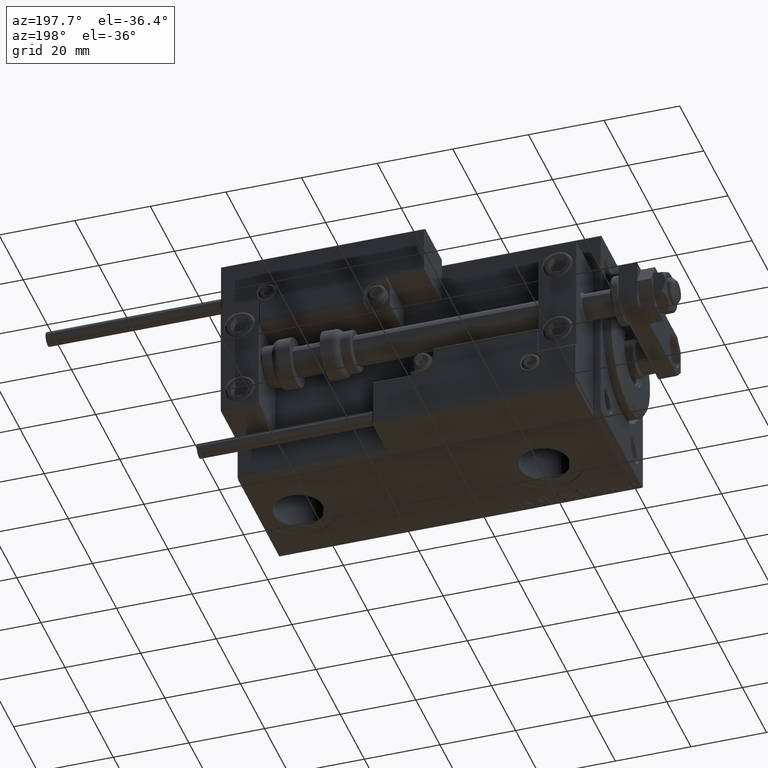
[diagram: clean part render]
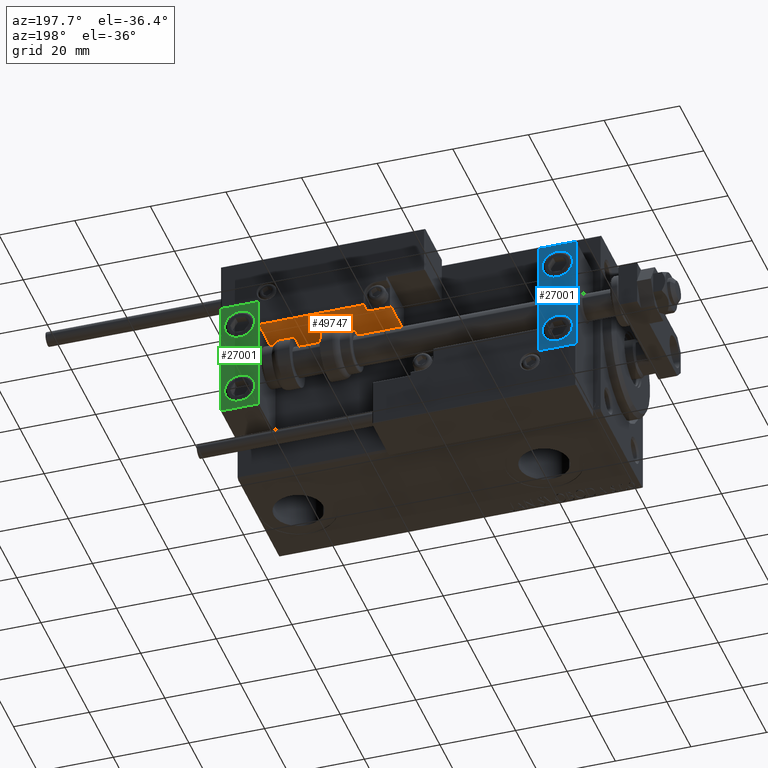
[diagram: same view with three faces highlighted in distinct colors, each labeled with its STEP entity id]
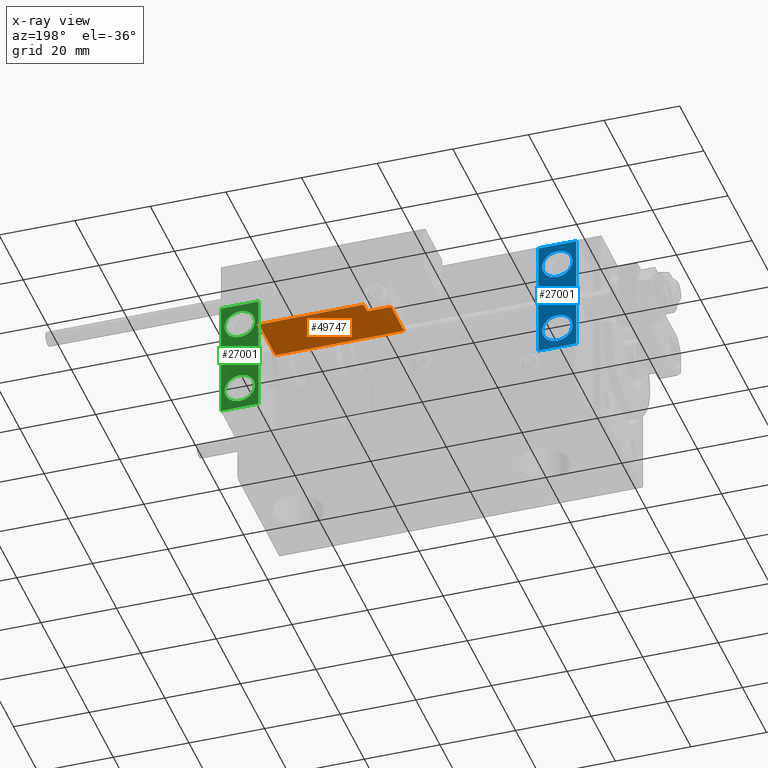
[diagram: x-ray of the same camera — body ghosted, the three highlighted faces saturated]
A machine part, auxiliary view with three faces highlighted in distinct colors.
The next image is the same camera in x-ray (body ghosted, the three faces saturated) — at least one of them is partly hidden behind the body in this view.
Their STEP definitions:

[orange] entity #49747 — the highlighted planar face has unit normal (-0, 0, 1).
#1505 = DIRECTION ( 'NONE',  ( -0.000000000000000000, -0.000000000000000000, -1.000000000000000000 ) ) ;
#2428 = DIRECTION ( 'NONE',  ( 0.000000000000000000, 1.000000000000000000, 0.000000000000000000 ) ) ;
#2681 = CARTESIAN_POINT ( 'NONE',  ( -16.99999999999999289, 3.252606517456513302E-15, 14.00000000000000000 ) ) ;
#3208 = DIRECTION ( 'NONE',  ( 0.000000000000000000, -0.000000000000000000, 1.000000000000000000 ) ) ;
#4186 = EDGE_CURVE ( 'NONE', #24109, #43990, #51414, .T. ) ;
#4842 = ORIENTED_EDGE ( 'NONE', *, *, #21755, .F. ) ;
#5244 = VERTEX_POINT ( 'NONE', #33820 ) ;
#5974 = VECTOR ( 'NONE', #32171, 1000.000000000000000 ) ;
#8756 = VECTOR ( 'NONE', #28034, 1000.000000000000000 ) ;
#9190 = EDGE_CURVE ( 'NONE', #28732, #5244, #37430, .T. ) ;
#9435 = CARTESIAN_POINT ( 'NONE',  ( 16.99999999999999289, 3.252606517456513302E-15, 10.69999999999999929 ) ) ;
#9519 = ORIENTED_EDGE ( 'NONE', *, *, #9190, .T. ) ;
#11259 = LINE ( 'NONE', #38420, #36210 ) ;
#11555 = CARTESIAN_POINT ( 'NONE',  ( 10.70000000000000107, 3.252606517456513302E-15, 14.00000000000000000 ) ) ;
#13330 = EDGE_CURVE ( 'NONE', #17456, #28732, #11259, .T. ) ;
#14140 = VECTOR ( 'NONE', #17746, 1000.000000000000000 ) ;
#14235 = DIRECTION ( 'NONE',  ( 0.000000000000000000, 0.000000000000000000, 1.000000000000000000 ) ) ;
#14367 = FACE_OUTER_BOUND ( 'NONE', #38887, .T. ) ;
#14400 = LINE ( 'NONE', #26365, #14513 ) ;
#14513 = VECTOR ( 'NONE', #18369, 1000.000000000000000 ) ;
#14758 = CARTESIAN_POINT ( 'NONE',  ( 11.29999999999999893, 3.252606517456513302E-15, 11.29999999999999893 ) ) ;
#17016 = CARTESIAN_POINT ( 'NONE',  ( -16.99999999999999289, 3.252606517456513302E-15, 13.70000000000000107 ) ) ;
#17456 = VERTEX_POINT ( 'NONE', #17016 ) ;
#17746 = DIRECTION ( 'NONE',  ( 1.000000000000000000, 0.000000000000000000, 0.000000000000000000 ) ) ;
#18369 = DIRECTION ( 'NONE',  ( -1.000000000000000000, 0.000000000000000000, -0.000000000000000000 ) ) ;
#18470 = DIRECTION ( 'NONE',  ( -0.000000000000000000, -1.000000000000000000, -0.000000000000000000 ) ) ;
#18970 = AXIS2_PLACEMENT_3D ( 'NONE', #2681, #2428, #3208 ) ;
#20969 = CARTESIAN_POINT ( 'NONE',  ( -16.99999999999999289, 3.252606517456513302E-15, 0.000000000000000000 ) ) ;
#21755 = EDGE_CURVE ( 'NONE', #24109, #5244, #44103, .T. ) ;
#23228 = EDGE_CURVE ( 'NONE', #31157, #17456, #14400, .T. ) ;
#24109 = VERTEX_POINT ( 'NONE', #9435 ) ;
#26365 = CARTESIAN_POINT ( 'NONE',  ( -16.99999999999999289, 3.252606517456513302E-15, 13.70000000000000107 ) ) ;
#26381 = CARTESIAN_POINT ( 'NONE',  ( -16.99999999999999289, 3.252606517456513302E-15, 0.000000000000000000 ) ) ;
#27469 = AXIS2_PLACEMENT_3D ( 'NONE', #14758, #18470, #14235 ) ;
#28034 = DIRECTION ( 'NONE',  ( 0.000000000000000000, -0.000000000000000000, 1.000000000000000000 ) ) ;
#28732 = VERTEX_POINT ( 'NONE', #26381 ) ;
#30207 = CARTESIAN_POINT ( 'NONE',  ( 11.00000000000000000, 3.252606517456513302E-15, 10.69999999999999929 ) ) ;
#31101 = PLANE ( 'NONE',  #18970 ) ;
#31118 = VECTOR ( 'NONE', #38160, 1000.000000000000000 ) ;
#31157 = VERTEX_POINT ( 'NONE', #40711 ) ;
#32171 = DIRECTION ( 'NONE',  ( -0.000000000000000000, -0.000000000000000000, -1.000000000000000000 ) ) ;
#33820 = CARTESIAN_POINT ( 'NONE',  ( 16.99999999999999289, 3.252606517456513302E-15, 0.000000000000000000 ) ) ;
#35617 = ORIENTED_EDGE ( 'NONE', *, *, #23228, .T. ) ;
#35712 = ORIENTED_EDGE ( 'NONE', *, *, #44051, .T. ) ;
#36143 = CARTESIAN_POINT ( 'NONE',  ( 16.99999999999999289, 3.252606517456513302E-15, 14.00000000000000000 ) ) ;
#36210 = VECTOR ( 'NONE', #1505, 1000.000000000000000 ) ;
#37430 = LINE ( 'NONE', #20969, #14140 ) ;
#38160 = DIRECTION ( 'NONE',  ( -1.000000000000000000, 0.000000000000000000, -0.000000000000000000 ) ) ;
#38407 = CARTESIAN_POINT ( 'NONE',  ( 10.70000000000000107, 3.252606517456513302E-15, 11.29999999999999893 ) ) ;
#38420 = CARTESIAN_POINT ( 'NONE',  ( -16.99999999999999289, 3.252606517456513302E-15, 14.00000000000000000 ) ) ;
#38659 = CARTESIAN_POINT ( 'NONE',  ( 11.29999999999999893, 3.252606517456513302E-15, 10.69999999999999929 ) ) ;
#38887 = EDGE_LOOP ( 'NONE', ( #4842, #44115, #48358, #35712, #35617, #43445, #9519 ) ) ;
#40711 = CARTESIAN_POINT ( 'NONE',  ( 10.70000000000000107, 3.252606517456513302E-15, 13.70000000000000107 ) ) ;
#41832 = CIRCLE ( 'NONE', #27469, 0.5999999999999998668 ) ;
#43445 = ORIENTED_EDGE ( 'NONE', *, *, #13330, .T. ) ;
#43990 = VERTEX_POINT ( 'NONE', #38659 ) ;
#44051 = EDGE_CURVE ( 'NONE', #44741, #31157, #51910, .T. ) ;
#44103 = LINE ( 'NONE', #36143, #5974 ) ;
#44115 = ORIENTED_EDGE ( 'NONE', *, *, #4186, .T. ) ;
#44703 = EDGE_CURVE ( 'NONE', #44741, #43990, #41832, .T. ) ;
#44741 = VERTEX_POINT ( 'NONE', #38407 ) ;
#48358 = ORIENTED_EDGE ( 'NONE', *, *, #44703, .F. ) ;
#49747 = ADVANCED_FACE ( 'NONE', ( #14367 ), #31101, .F. ) ;
#51414 = LINE ( 'NONE', #30207, #31118 ) ;
#51910 = LINE ( 'NONE', #11555, #8756 ) ;

[blue] entity #27001 — the highlighted planar face has unit normal (-0, 1, 0).
#739 = LINE ( 'NONE', #3937, #5170 ) ;
#763 = VERTEX_POINT ( 'NONE', #50913 ) ;
#3937 = CARTESIAN_POINT ( 'NONE',  ( 10.00000000000000000, 7.000000000000000000, 15.99999999999999289 ) ) ;
#4498 = CARTESIAN_POINT ( 'NONE',  ( 10.00000000000000000, 7.000000000000000000, 15.99999999999999289 ) ) ;
#5170 = VECTOR ( 'NONE', #15898, 1000.000000000000000 ) ;
#5426 = CIRCLE ( 'NONE', #35135, 4.000000000000000888 ) ;
#5538 = VERTEX_POINT ( 'NONE', #19982 ) ;
#7026 = DIRECTION ( 'NONE',  ( 0.000000000000000000, 0.000000000000000000, 1.000000000000000000 ) ) ;
#7209 = CIRCLE ( 'NONE', #32641, 4.000000000000000000 ) ;
#7503 = EDGE_CURVE ( 'NONE', #49075, #18198, #21108, .T. ) ;
#8485 = DIRECTION ( 'NONE',  ( 0.000000000000000000, -0.000000000000000000, 1.000000000000000000 ) ) ;
#8902 = ORIENTED_EDGE ( 'NONE', *, *, #22860, .F. ) ;
#9013 = FACE_BOUND ( 'NONE', #21630, .T. ) ;
#9272 = FACE_BOUND ( 'NONE', #28687, .T. ) ;
#9924 = ORIENTED_EDGE ( 'NONE', *, *, #45854, .T. ) ;
#13067 = CIRCLE ( 'NONE', #45281, 4.000000000000000000 ) ;
#14007 = VERTEX_POINT ( 'NONE', #34636 ) ;
#14517 = CARTESIAN_POINT ( 'NONE',  ( 5.000000000000000888, 6.999999999999999112, -10.00000000000000178 ) ) ;
#14659 = VERTEX_POINT ( 'NONE', #19353 ) ;
#15898 = DIRECTION ( 'NONE',  ( -1.000000000000000000, -0.000000000000000000, -0.000000000000000000 ) ) ;
#17443 = EDGE_LOOP ( 'NONE', ( #29973, #8902, #30020, #23035 ) ) ;
#18198 = VERTEX_POINT ( 'NONE', #45827 ) ;
#19049 = VECTOR ( 'NONE', #33792, 1000.000000000000000 ) ;
#19353 = CARTESIAN_POINT ( 'NONE',  ( 10.00000000000000000, 7.000000000000000000, -16.00000000000000711 ) ) ;
#19982 = CARTESIAN_POINT ( 'NONE',  ( 5.000000000000001776, 6.999999999999999112, -14.00000000000000178 ) ) ;
#20884 = DIRECTION ( 'NONE',  ( 0.000000000000000000, 0.000000000000000000, 1.000000000000000000 ) ) ;
#21108 = LINE ( 'NONE', #21363, #25315 ) ;
#21215 = DIRECTION ( 'NONE',  ( -0.000000000000000000, 1.000000000000000000, 0.000000000000000000 ) ) ;
#21363 = CARTESIAN_POINT ( 'NONE',  ( 0.000000000000000000, 7.000000000000000000, 15.99999999999999289 ) ) ;
#21630 = EDGE_LOOP ( 'NONE', ( #34961, #44154 ) ) ;
#21838 = CARTESIAN_POINT ( 'NONE',  ( 10.00000000000000000, 7.000000000000000000, 15.99999999999999289 ) ) ;
#22355 = CIRCLE ( 'NONE', #50316, 4.000000000000000888 ) ;
#22860 = EDGE_CURVE ( 'NONE', #14007, #49075, #739, .T. ) ;
#23035 = ORIENTED_EDGE ( 'NONE', *, *, #24890, .T. ) ;
#23365 = DIRECTION ( 'NONE',  ( 0.000000000000000000, 0.000000000000000000, 1.000000000000000000 ) ) ;
#23907 = CARTESIAN_POINT ( 'NONE',  ( 0.000000000000000000, 7.000000000000000000, 15.99999999999999289 ) ) ;
#24624 = DIRECTION ( 'NONE',  ( 1.848892746611746419E-32, -1.000000000000000000, 6.616381192988677562E-17 ) ) ;
#24853 = DIRECTION ( 'NONE',  ( 0.000000000000000000, 0.000000000000000000, -1.000000000000000000 ) ) ;
#24890 = EDGE_CURVE ( 'NONE', #14659, #18198, #45619, .T. ) ;
#25196 = CARTESIAN_POINT ( 'NONE',  ( 10.00000000000000000, 7.000000000000000000, -16.00000000000000711 ) ) ;
#25315 = VECTOR ( 'NONE', #24853, 1000.000000000000000 ) ;
#25664 = VERTEX_POINT ( 'NONE', #39373 ) ;
#27001 = ADVANCED_FACE ( 'NONE', ( #45646, #9013, #9272 ), #44866, .T. ) ;
#28687 = EDGE_LOOP ( 'NONE', ( #9924, #31683 ) ) ;
#29803 = AXIS2_PLACEMENT_3D ( 'NONE', #4498, #21215, #8485 ) ;
#29973 = ORIENTED_EDGE ( 'NONE', *, *, #7503, .F. ) ;
#30020 = ORIENTED_EDGE ( 'NONE', *, *, #34237, .T. ) ;
#30934 = DIRECTION ( 'NONE',  ( 1.848892746611746419E-32, -1.000000000000000000, 6.616381192988677562E-17 ) ) ;
#31683 = ORIENTED_EDGE ( 'NONE', *, *, #48326, .T. ) ;
#31976 = EDGE_CURVE ( 'NONE', #5538, #763, #22355, .T. ) ;
#32641 = AXIS2_PLACEMENT_3D ( 'NONE', #49029, #24624, #20884 ) ;
#33259 = VERTEX_POINT ( 'NONE', #51949 ) ;
#33532 = LINE ( 'NONE', #21838, #19049 ) ;
#33792 = DIRECTION ( 'NONE',  ( 0.000000000000000000, 0.000000000000000000, -1.000000000000000000 ) ) ;
#34237 = EDGE_CURVE ( 'NONE', #14007, #14659, #33532, .T. ) ;
#34636 = CARTESIAN_POINT ( 'NONE',  ( 10.00000000000000000, 7.000000000000000000, 15.99999999999999289 ) ) ;
#34961 = ORIENTED_EDGE ( 'NONE', *, *, #51025, .F. ) ;
#35135 = AXIS2_PLACEMENT_3D ( 'NONE', #35305, #51490, #23365 ) ;
#35305 = CARTESIAN_POINT ( 'NONE',  ( 5.000000000000000888, 6.999999999999999112, -10.00000000000000178 ) ) ;
#38157 = DIRECTION ( 'NONE',  ( 0.000000000000000000, 0.000000000000000000, 1.000000000000000000 ) ) ;
#38184 = DIRECTION ( 'NONE',  ( -1.000000000000000000, -0.000000000000000000, -0.000000000000000000 ) ) ;
#39373 = CARTESIAN_POINT ( 'NONE',  ( 5.000000000000001776, 7.000000000000000888, 6.000000000000000888 ) ) ;
#43922 = CARTESIAN_POINT ( 'NONE',  ( 5.000000000000000888, 7.000000000000000888, 10.00000000000000178 ) ) ;
#44154 = ORIENTED_EDGE ( 'NONE', *, *, #31976, .F. ) ;
#44866 = PLANE ( 'NONE',  #29803 ) ;
#45281 = AXIS2_PLACEMENT_3D ( 'NONE', #43922, #30934, #7026 ) ;
#45619 = LINE ( 'NONE', #25196, #49337 ) ;
#45646 = FACE_OUTER_BOUND ( 'NONE', #17443, .T. ) ;
#45827 = CARTESIAN_POINT ( 'NONE',  ( 0.000000000000000000, 7.000000000000000000, -16.00000000000000711 ) ) ;
#45854 = EDGE_CURVE ( 'NONE', #33259, #25664, #13067, .T. ) ;
#48326 = EDGE_CURVE ( 'NONE', #25664, #33259, #7209, .T. ) ;
#49029 = CARTESIAN_POINT ( 'NONE',  ( 5.000000000000000888, 7.000000000000000888, 10.00000000000000178 ) ) ;
#49075 = VERTEX_POINT ( 'NONE', #23907 ) ;
#49337 = VECTOR ( 'NONE', #38184, 1000.000000000000000 ) ;
#50094 = DIRECTION ( 'NONE',  ( 0.000000000000000000, 1.000000000000000000, -6.065466699219605527E-17 ) ) ;
#50316 = AXIS2_PLACEMENT_3D ( 'NONE', #14517, #50094, #38157 ) ;
#50913 = CARTESIAN_POINT ( 'NONE',  ( 5.000000000000000888, 6.999999999999999112, -6.000000000000000888 ) ) ;
#51025 = EDGE_CURVE ( 'NONE', #763, #5538, #5426, .T. ) ;
#51490 = DIRECTION ( 'NONE',  ( 0.000000000000000000, 1.000000000000000000, -6.065466699219605527E-17 ) ) ;
#51949 = CARTESIAN_POINT ( 'NONE',  ( 5.000000000000000888, 7.000000000000000888, 14.00000000000000178 ) ) ;

[green] entity #27001 — the highlighted planar face has unit normal (0, 1, 0).
#739 = LINE ( 'NONE', #3937, #5170 ) ;
#763 = VERTEX_POINT ( 'NONE', #50913 ) ;
#3937 = CARTESIAN_POINT ( 'NONE',  ( 10.00000000000000000, 7.000000000000000000, 15.99999999999999289 ) ) ;
#4498 = CARTESIAN_POINT ( 'NONE',  ( 10.00000000000000000, 7.000000000000000000, 15.99999999999999289 ) ) ;
#5170 = VECTOR ( 'NONE', #15898, 1000.000000000000000 ) ;
#5426 = CIRCLE ( 'NONE', #35135, 4.000000000000000888 ) ;
#5538 = VERTEX_POINT ( 'NONE', #19982 ) ;
#7026 = DIRECTION ( 'NONE',  ( 0.000000000000000000, 0.000000000000000000, 1.000000000000000000 ) ) ;
#7209 = CIRCLE ( 'NONE', #32641, 4.000000000000000000 ) ;
#7503 = EDGE_CURVE ( 'NONE', #49075, #18198, #21108, .T. ) ;
#8485 = DIRECTION ( 'NONE',  ( 0.000000000000000000, -0.000000000000000000, 1.000000000000000000 ) ) ;
#8902 = ORIENTED_EDGE ( 'NONE', *, *, #22860, .F. ) ;
#9013 = FACE_BOUND ( 'NONE', #21630, .T. ) ;
#9272 = FACE_BOUND ( 'NONE', #28687, .T. ) ;
#9924 = ORIENTED_EDGE ( 'NONE', *, *, #45854, .T. ) ;
#13067 = CIRCLE ( 'NONE', #45281, 4.000000000000000000 ) ;
#14007 = VERTEX_POINT ( 'NONE', #34636 ) ;
#14517 = CARTESIAN_POINT ( 'NONE',  ( 5.000000000000000888, 6.999999999999999112, -10.00000000000000178 ) ) ;
#14659 = VERTEX_POINT ( 'NONE', #19353 ) ;
#15898 = DIRECTION ( 'NONE',  ( -1.000000000000000000, -0.000000000000000000, -0.000000000000000000 ) ) ;
#17443 = EDGE_LOOP ( 'NONE', ( #29973, #8902, #30020, #23035 ) ) ;
#18198 = VERTEX_POINT ( 'NONE', #45827 ) ;
#19049 = VECTOR ( 'NONE', #33792, 1000.000000000000000 ) ;
#19353 = CARTESIAN_POINT ( 'NONE',  ( 10.00000000000000000, 7.000000000000000000, -16.00000000000000711 ) ) ;
#19982 = CARTESIAN_POINT ( 'NONE',  ( 5.000000000000001776, 6.999999999999999112, -14.00000000000000178 ) ) ;
#20884 = DIRECTION ( 'NONE',  ( 0.000000000000000000, 0.000000000000000000, 1.000000000000000000 ) ) ;
#21108 = LINE ( 'NONE', #21363, #25315 ) ;
#21215 = DIRECTION ( 'NONE',  ( -0.000000000000000000, 1.000000000000000000, 0.000000000000000000 ) ) ;
#21363 = CARTESIAN_POINT ( 'NONE',  ( 0.000000000000000000, 7.000000000000000000, 15.99999999999999289 ) ) ;
#21630 = EDGE_LOOP ( 'NONE', ( #34961, #44154 ) ) ;
#21838 = CARTESIAN_POINT ( 'NONE',  ( 10.00000000000000000, 7.000000000000000000, 15.99999999999999289 ) ) ;
#22355 = CIRCLE ( 'NONE', #50316, 4.000000000000000888 ) ;
#22860 = EDGE_CURVE ( 'NONE', #14007, #49075, #739, .T. ) ;
#23035 = ORIENTED_EDGE ( 'NONE', *, *, #24890, .T. ) ;
#23365 = DIRECTION ( 'NONE',  ( 0.000000000000000000, 0.000000000000000000, 1.000000000000000000 ) ) ;
#23907 = CARTESIAN_POINT ( 'NONE',  ( 0.000000000000000000, 7.000000000000000000, 15.99999999999999289 ) ) ;
#24624 = DIRECTION ( 'NONE',  ( 1.848892746611746419E-32, -1.000000000000000000, 6.616381192988677562E-17 ) ) ;
#24853 = DIRECTION ( 'NONE',  ( 0.000000000000000000, 0.000000000000000000, -1.000000000000000000 ) ) ;
#24890 = EDGE_CURVE ( 'NONE', #14659, #18198, #45619, .T. ) ;
#25196 = CARTESIAN_POINT ( 'NONE',  ( 10.00000000000000000, 7.000000000000000000, -16.00000000000000711 ) ) ;
#25315 = VECTOR ( 'NONE', #24853, 1000.000000000000000 ) ;
#25664 = VERTEX_POINT ( 'NONE', #39373 ) ;
#27001 = ADVANCED_FACE ( 'NONE', ( #45646, #9013, #9272 ), #44866, .T. ) ;
#28687 = EDGE_LOOP ( 'NONE', ( #9924, #31683 ) ) ;
#29803 = AXIS2_PLACEMENT_3D ( 'NONE', #4498, #21215, #8485 ) ;
#29973 = ORIENTED_EDGE ( 'NONE', *, *, #7503, .F. ) ;
#30020 = ORIENTED_EDGE ( 'NONE', *, *, #34237, .T. ) ;
#30934 = DIRECTION ( 'NONE',  ( 1.848892746611746419E-32, -1.000000000000000000, 6.616381192988677562E-17 ) ) ;
#31683 = ORIENTED_EDGE ( 'NONE', *, *, #48326, .T. ) ;
#31976 = EDGE_CURVE ( 'NONE', #5538, #763, #22355, .T. ) ;
#32641 = AXIS2_PLACEMENT_3D ( 'NONE', #49029, #24624, #20884 ) ;
#33259 = VERTEX_POINT ( 'NONE', #51949 ) ;
#33532 = LINE ( 'NONE', #21838, #19049 ) ;
#33792 = DIRECTION ( 'NONE',  ( 0.000000000000000000, 0.000000000000000000, -1.000000000000000000 ) ) ;
#34237 = EDGE_CURVE ( 'NONE', #14007, #14659, #33532, .T. ) ;
#34636 = CARTESIAN_POINT ( 'NONE',  ( 10.00000000000000000, 7.000000000000000000, 15.99999999999999289 ) ) ;
#34961 = ORIENTED_EDGE ( 'NONE', *, *, #51025, .F. ) ;
#35135 = AXIS2_PLACEMENT_3D ( 'NONE', #35305, #51490, #23365 ) ;
#35305 = CARTESIAN_POINT ( 'NONE',  ( 5.000000000000000888, 6.999999999999999112, -10.00000000000000178 ) ) ;
#38157 = DIRECTION ( 'NONE',  ( 0.000000000000000000, 0.000000000000000000, 1.000000000000000000 ) ) ;
#38184 = DIRECTION ( 'NONE',  ( -1.000000000000000000, -0.000000000000000000, -0.000000000000000000 ) ) ;
#39373 = CARTESIAN_POINT ( 'NONE',  ( 5.000000000000001776, 7.000000000000000888, 6.000000000000000888 ) ) ;
#43922 = CARTESIAN_POINT ( 'NONE',  ( 5.000000000000000888, 7.000000000000000888, 10.00000000000000178 ) ) ;
#44154 = ORIENTED_EDGE ( 'NONE', *, *, #31976, .F. ) ;
#44866 = PLANE ( 'NONE',  #29803 ) ;
#45281 = AXIS2_PLACEMENT_3D ( 'NONE', #43922, #30934, #7026 ) ;
#45619 = LINE ( 'NONE', #25196, #49337 ) ;
#45646 = FACE_OUTER_BOUND ( 'NONE', #17443, .T. ) ;
#45827 = CARTESIAN_POINT ( 'NONE',  ( 0.000000000000000000, 7.000000000000000000, -16.00000000000000711 ) ) ;
#45854 = EDGE_CURVE ( 'NONE', #33259, #25664, #13067, .T. ) ;
#48326 = EDGE_CURVE ( 'NONE', #25664, #33259, #7209, .T. ) ;
#49029 = CARTESIAN_POINT ( 'NONE',  ( 5.000000000000000888, 7.000000000000000888, 10.00000000000000178 ) ) ;
#49075 = VERTEX_POINT ( 'NONE', #23907 ) ;
#49337 = VECTOR ( 'NONE', #38184, 1000.000000000000000 ) ;
#50094 = DIRECTION ( 'NONE',  ( 0.000000000000000000, 1.000000000000000000, -6.065466699219605527E-17 ) ) ;
#50316 = AXIS2_PLACEMENT_3D ( 'NONE', #14517, #50094, #38157 ) ;
#50913 = CARTESIAN_POINT ( 'NONE',  ( 5.000000000000000888, 6.999999999999999112, -6.000000000000000888 ) ) ;
#51025 = EDGE_CURVE ( 'NONE', #763, #5538, #5426, .T. ) ;
#51490 = DIRECTION ( 'NONE',  ( 0.000000000000000000, 1.000000000000000000, -6.065466699219605527E-17 ) ) ;
#51949 = CARTESIAN_POINT ( 'NONE',  ( 5.000000000000000888, 7.000000000000000888, 14.00000000000000178 ) ) ;